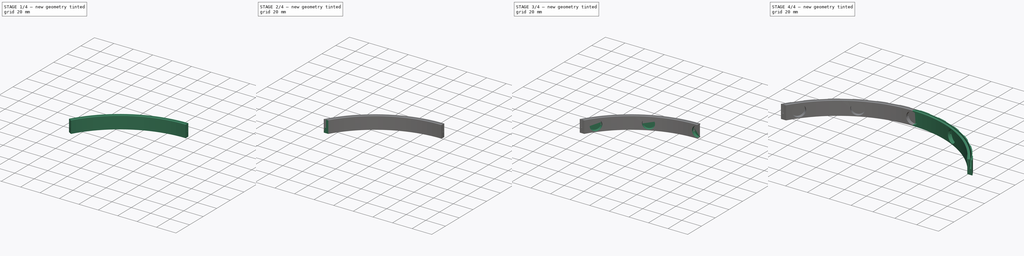
[diagram: build sequence overview — one tinted view per stage of 4, left to right]
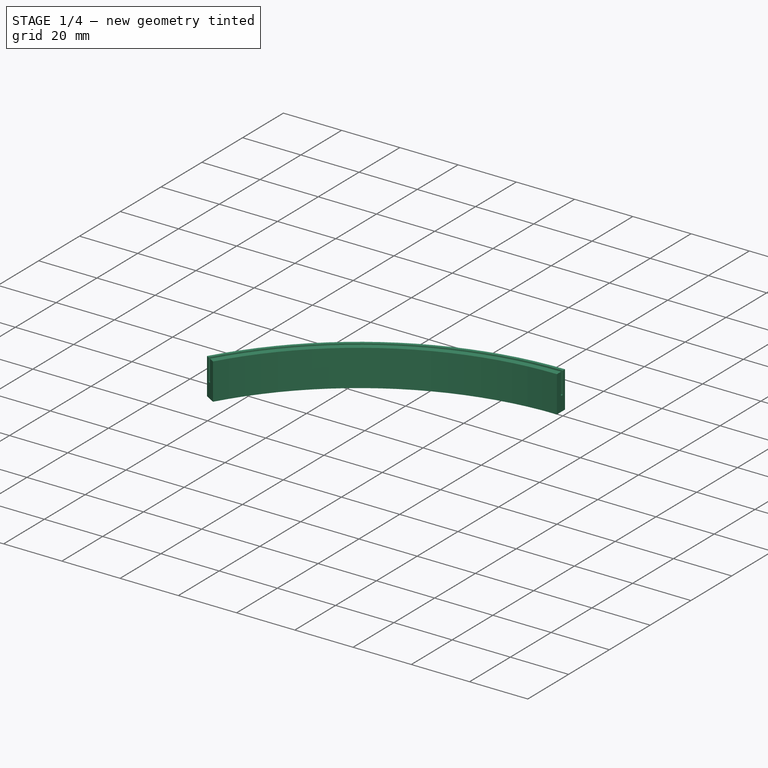
[diagram: stage 1 of 4 — iso view after this stage's code; geometry added in this stage tinted green]
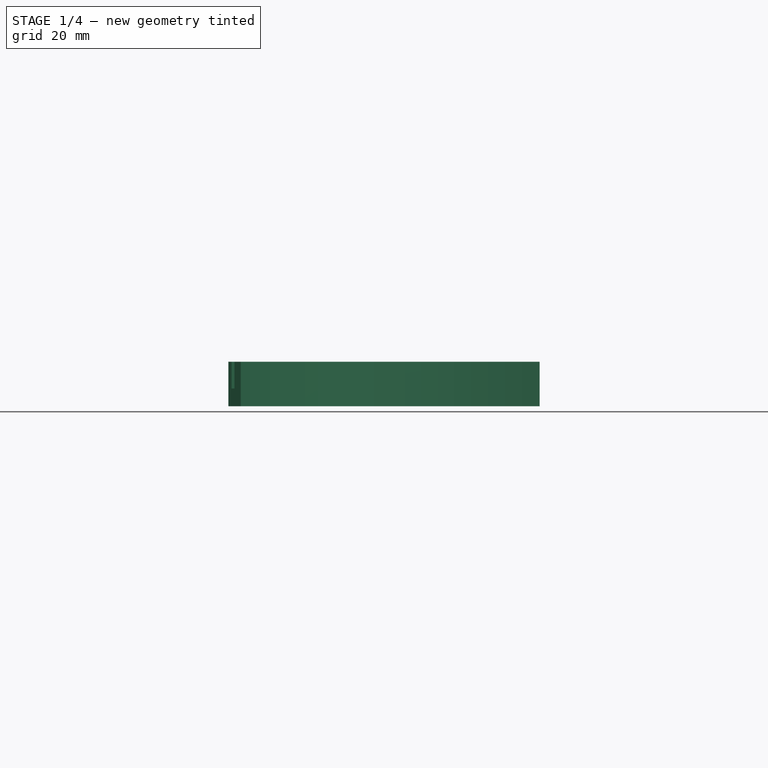
[diagram: stage 1 of 4 — front view after this stage's code; geometry added in this stage tinted green]
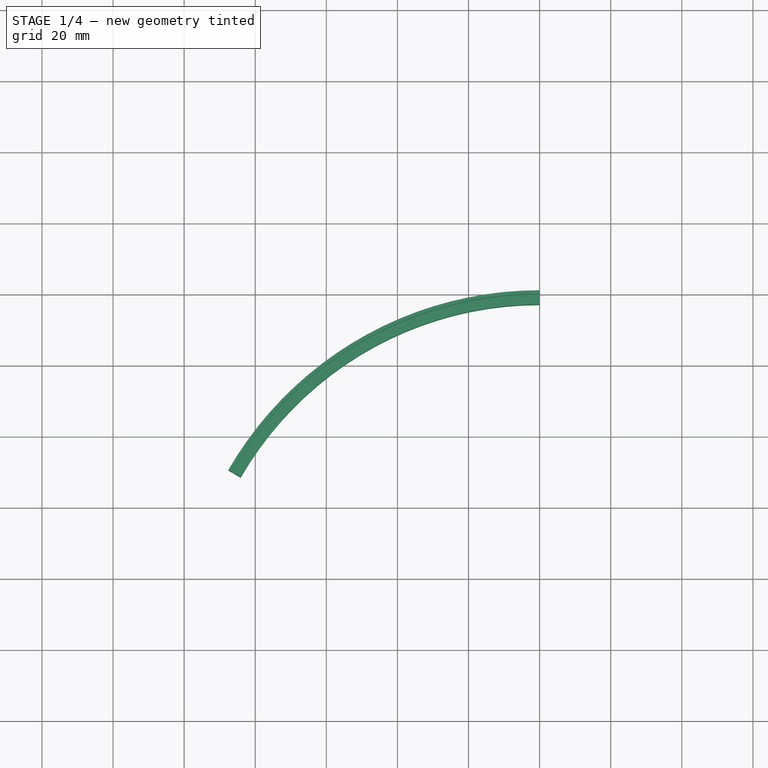
[diagram: stage 1 of 4 — top view after this stage's code; geometry added in this stage tinted green]
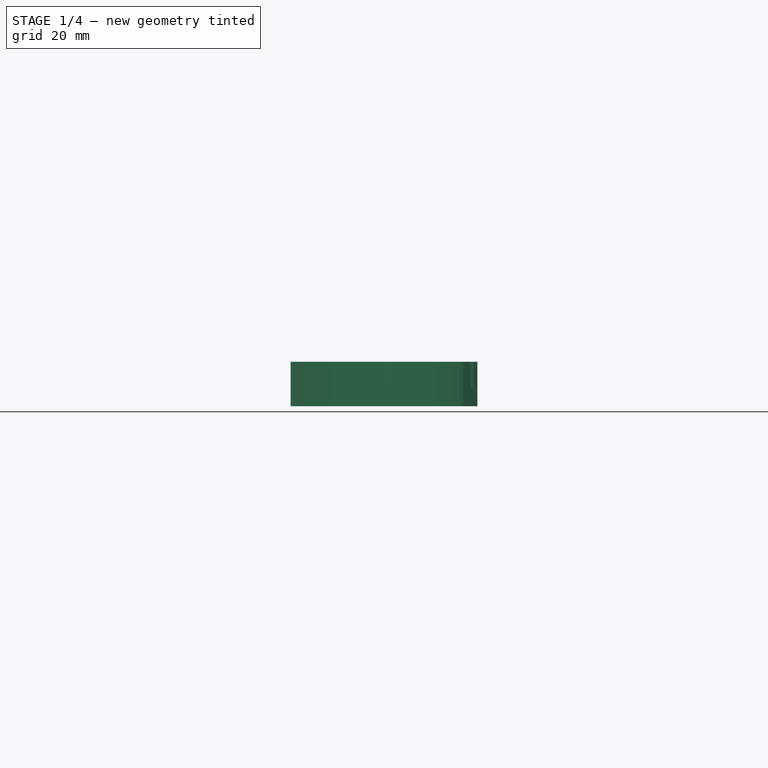
[diagram: stage 1 of 4 — right view after this stage's code; geometry added in this stage tinted green]
FCSTD DOCUMENT  (FreeCAD 1.0R39319 (Git))
Label: VisorAdapter
License: All rights reserved
LicenseURL: https://en.wikipedia.org/wiki/All_rights_reserved
objects: Sketcher::SketchObject×4, PartDesign::Pad×3, PartDesign::Pocket×3, PartDesign::PolarPattern×3, PartDesign::SubtractiveBox×2, PartDesign::Draft×1, PartDesign::Mirrored×1, PartDesign::Body×1
note: 44 computed .brp shape members not serialized (recipe doc carries the construction recipe); baked Part::Feature solids carry a one-line shape summary decoded from their .brp

FEATURE [Sketcher::SketchObject] Sketch
  ArcFitTolerance = 1e-06
  AttachmentSupport = -> [XY_Plane]
  FullyConstrained = true
  MakeInternals = false
  MapMode = 5
  sketch-geometry (10):
    g0: ArcOfCircle CenterX=0 CenterY=0 CenterZ=0 NormalX=0 NormalY=0 NormalZ=1 AngleXU=0 Radius=101.1 StartAngle=1.5708 EndAngle=2.61799
    g1: ArcOfCircle CenterX=0 CenterY=0 CenterZ=0 NormalX=0 NormalY=0 NormalZ=1 AngleXU=0 Radius=97.1 StartAngle=1.5708 EndAngle=2.61799
    g2: ArcOfCircle CenterX=0 CenterY=0 CenterZ=0 NormalX=0 NormalY=0 NormalZ=1 AngleXU=0 Radius=99.1 StartAngle=1.5708 EndAngle=2.61799
    g3: ArcOfCircle CenterX=-6.1e-15 CenterY=0 CenterZ=0 NormalX=0 NormalY=0 NormalZ=1 AngleXU=0 Radius=100.1 StartAngle=1.5708 EndAngle=2.61799
    g4: LineSegment StartX=0 StartY=99.1 StartZ=0 EndX=0 EndY=97.1 EndZ=0
    g5: LineSegment StartX=0 StartY=101.1 StartZ=0 EndX=0 EndY=100.1 EndZ=0
    g6: LineSegment StartX=0 StartY=100.1 StartZ=0 EndX=0 EndY=99.1 EndZ=0
    g7: LineSegment StartX=-87.5552 StartY=50.55 StartZ=0 EndX=-86.6891 EndY=50.05 EndZ=0
    g8: LineSegment StartX=-86.6891 StartY=50.05 StartZ=0 EndX=-85.8231 EndY=49.55 EndZ=0
    g9: LineSegment StartX=-85.8231 StartY=49.55 StartZ=0 EndX=-84.0911 EndY=48.55 EndZ=0
  constraints (29):
    c: Radius(g0) = 101.1
    c: Angle(g0) = 1.0472
    c: Coincident(g0,g-1)
    c: PointOnObject(g0,g-2)
    c: Radius(g1) = 97.1
    c: Angle(g1) = 1.0472
    c: Coincident(g1,g0)
    c: PointOnObject(g1,g-2)
    c: Radius(g2) = 99.1
    c: Angle(g2) = 1.0472
    c: Coincident(g2,g0)
    c: PointOnObject(g2,g-2)
    c: Block(g0)
    c: Block(g1)
    c: Block(g2)
    c: Block(g3)
    c: Coincident(g4,g2)
    c: Coincident(g4,g1)
    c: Coincident(g5,g0)
    c: Coincident(g5,g3)
    c: Vertical(g5)
    c: Coincident(g6,g3)
    c: Coincident(g6,g2)
    c: Coincident(g7,g0)
    c: Coincident(g7,g3)
    c: Coincident(g8,g3)
    c: Coincident(g8,g2)
    c: Coincident(g9,g2)
    c: Coincident(g9,g1)
FEATURE [PartDesign::Pad] Pad
  Direction = (0,0,1)
  Length = 12.5
  Length2 = 10
  Profile = -> Sketch [Edge4,Edge5,Edge1,Edge3]
  ReferenceAxis = -> Sketch [N_Axis]
  Refine = true
  Suppressed = false
  Type = 0
FEATURE [PartDesign::Pad] Pad001
  BaseFeature = -> Pad
  Direction = (0,0,1)
  Length = 5
  Length2 = 10
  Profile = -> Sketch [Edge1,Edge10,Edge6,Edge2]
  ReferenceAxis = -> Sketch [N_Axis]
  Refine = true
  Suppressed = false
  Type = 0
FEATURE [PartDesign::Pad] Pad002
  BaseFeature = -> Pad001
  Direction = (0,0,1)
  Length = 12.5
  Length2 = 10
  Profile = -> Sketch [Edge9,Edge10,Edge8,Edge7]
  ReferenceAxis = -> Sketch [N_Axis]
  Refine = true
  Suppressed = false
  Type = 0
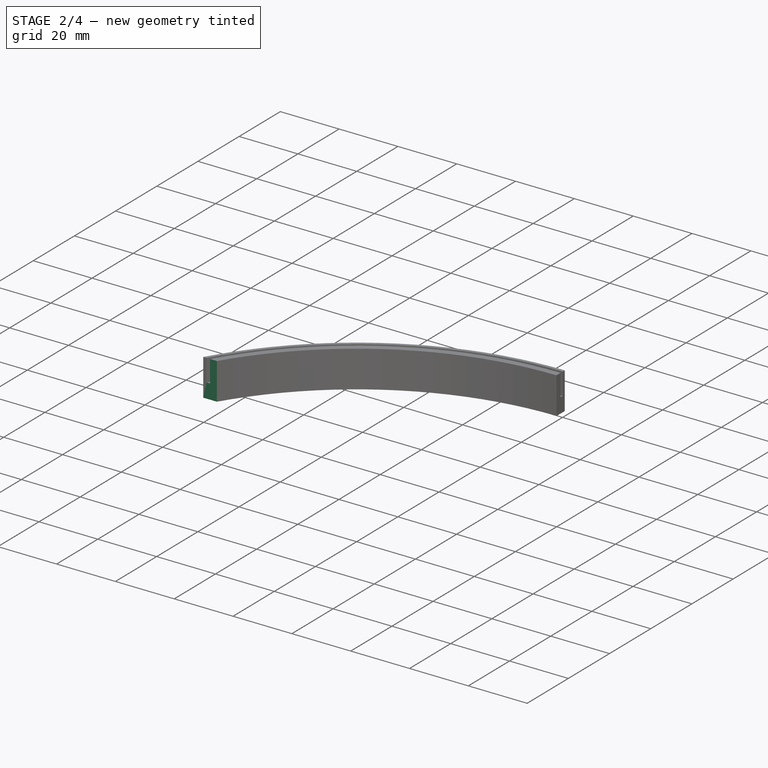
[diagram: stage 2 of 4 — iso view after this stage's code; geometry added in this stage tinted green]
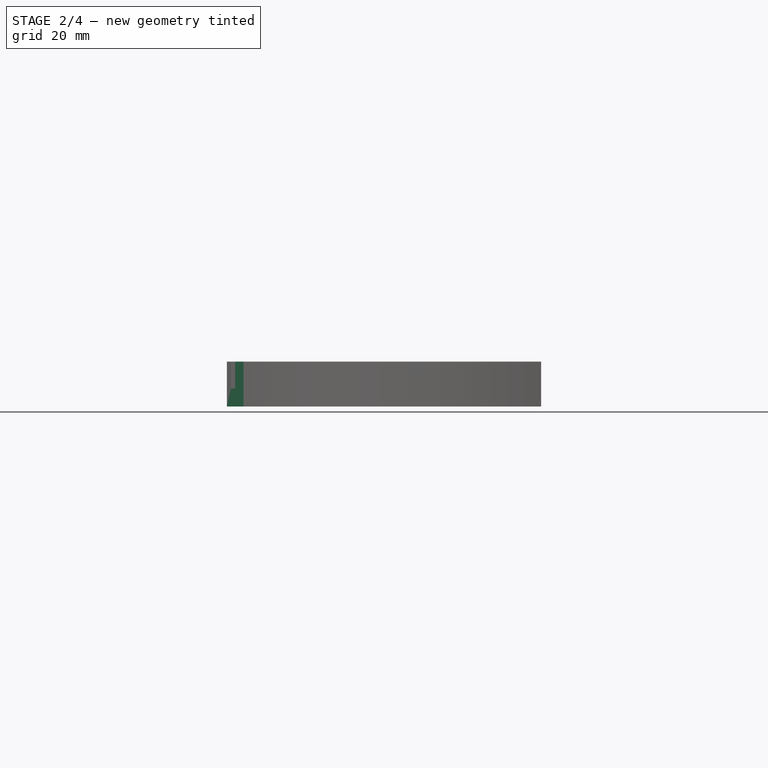
[diagram: stage 2 of 4 — front view after this stage's code; geometry added in this stage tinted green]
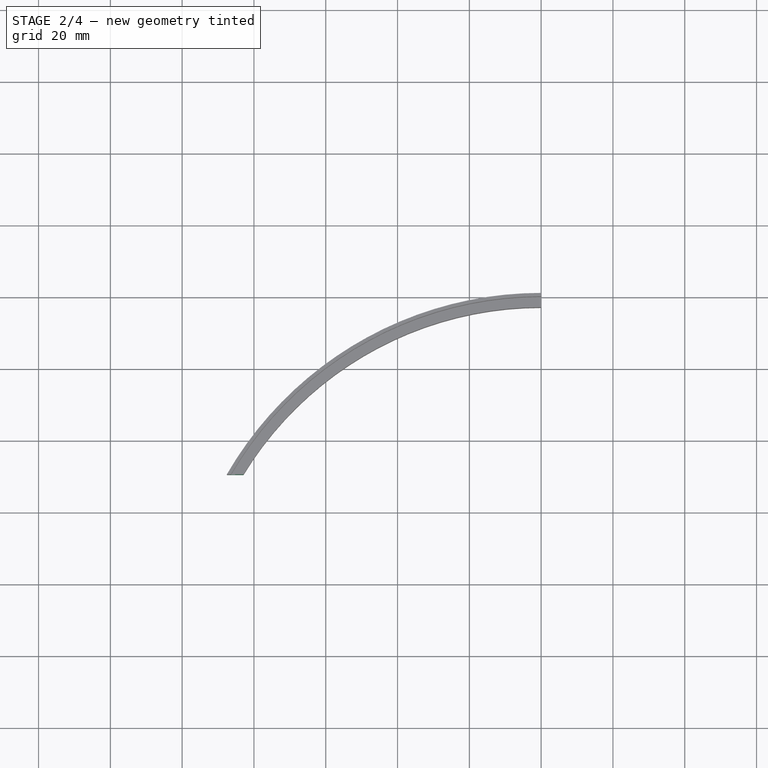
[diagram: stage 2 of 4 — top view after this stage's code; geometry added in this stage tinted green]
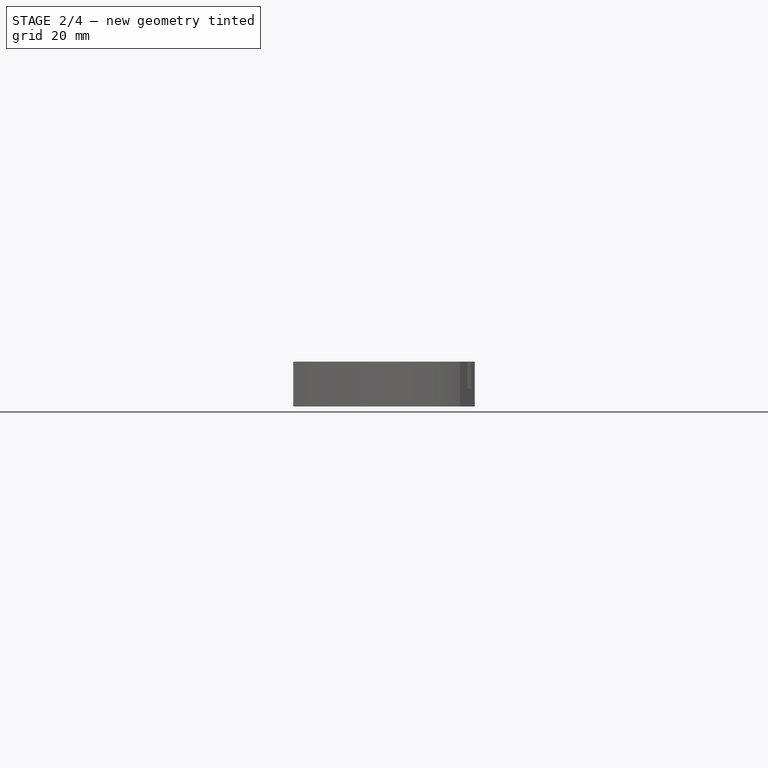
[diagram: stage 2 of 4 — right view after this stage's code; geometry added in this stage tinted green]
FEATURE [PartDesign::Draft] Draft
  Angle = 30
  Base = -> Pad002 [Face10]
  BaseFeature = -> Pad002
  Refine = true
  Reversed = true
  SupportTransform = false
  Suppressed = false
FEATURE [PartDesign::SubtractiveBox] Box
  AttacherType = Attacher::AttachEngine3D
  BaseFeature = -> Draft
  Height = 10
  Length = 10
  Refine = true
  Suppressed = false
  Width = 10
FEATURE [PartDesign::SubtractiveBox] Box001
  AttacherType = Attacher::AttachEngine3D
  AttachmentOffset = pos=(-4,-7,-9) rot=(0,0,1;0rad)
  AttachmentSupport = -> [Box]
  BaseFeature = -> Box
  Height = 10
  Length = 10
  MapMode = 45
  Placement = pos=(-88.6644,40.55,13.25) rot=(-1,0,0;1.5708rad)
  Refine = true
  Suppressed = false
  Width = 15
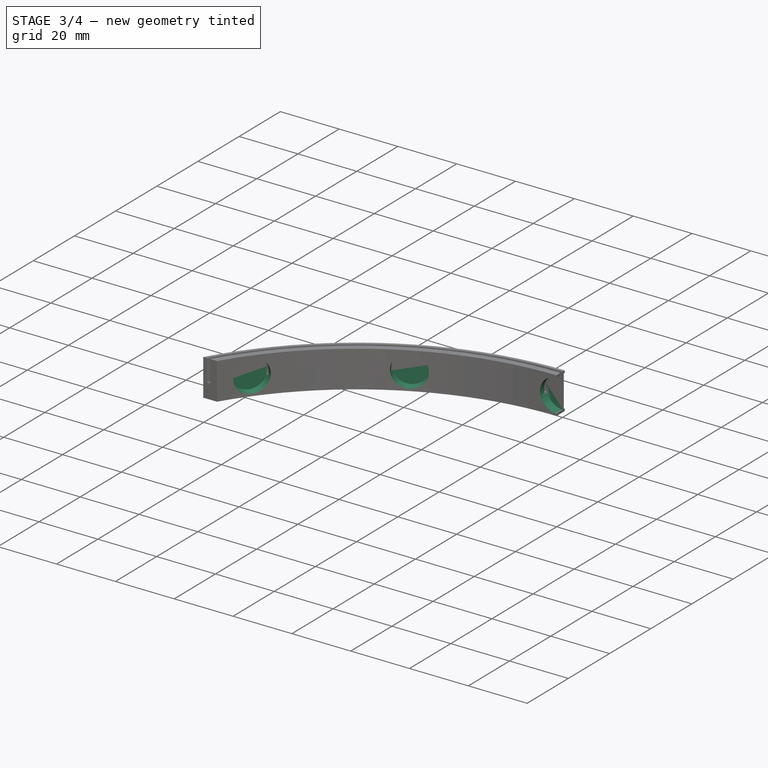
[diagram: stage 3 of 4 — iso view after this stage's code; geometry added in this stage tinted green]
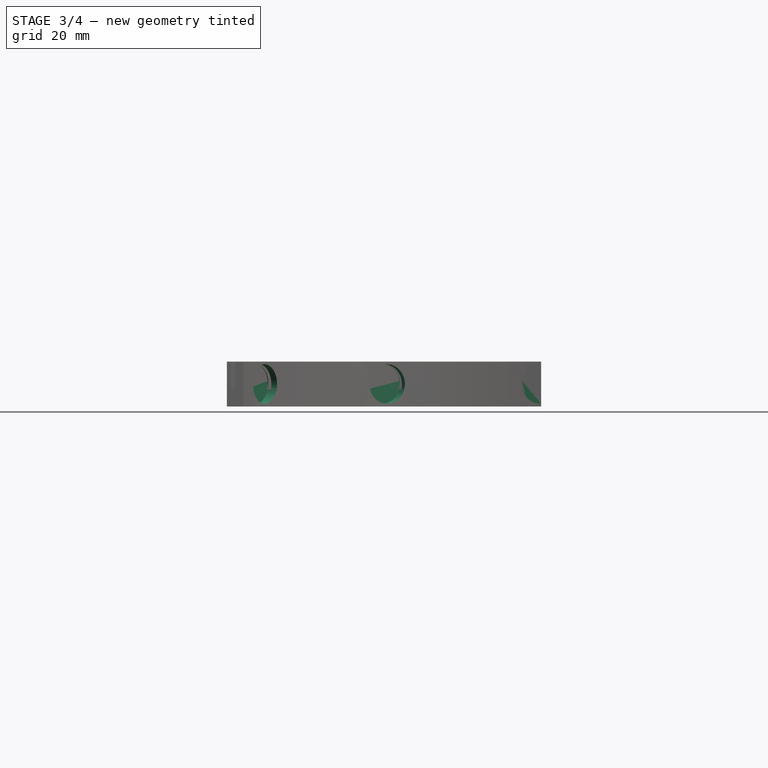
[diagram: stage 3 of 4 — front view after this stage's code; geometry added in this stage tinted green]
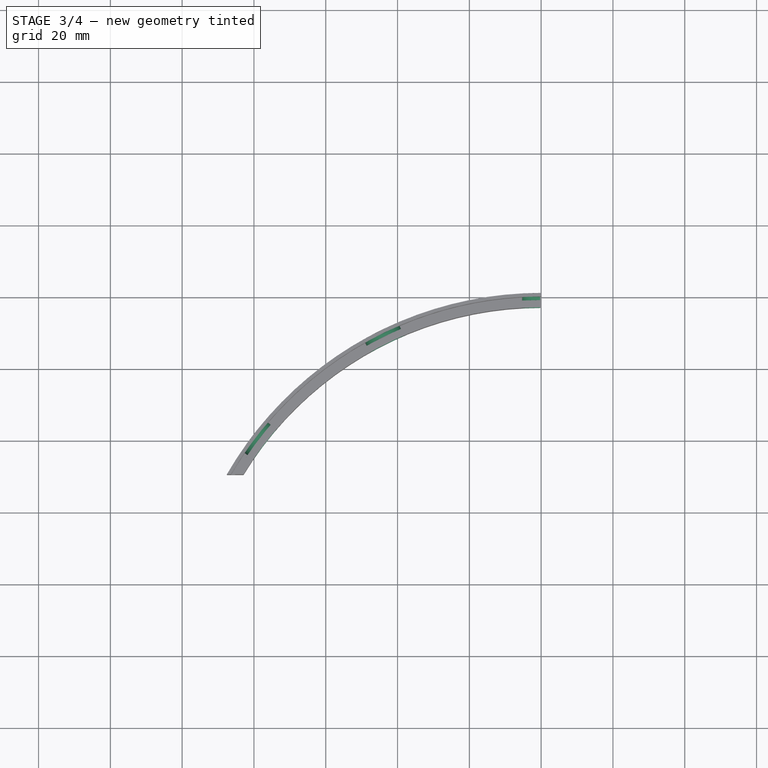
[diagram: stage 3 of 4 — top view after this stage's code; geometry added in this stage tinted green]
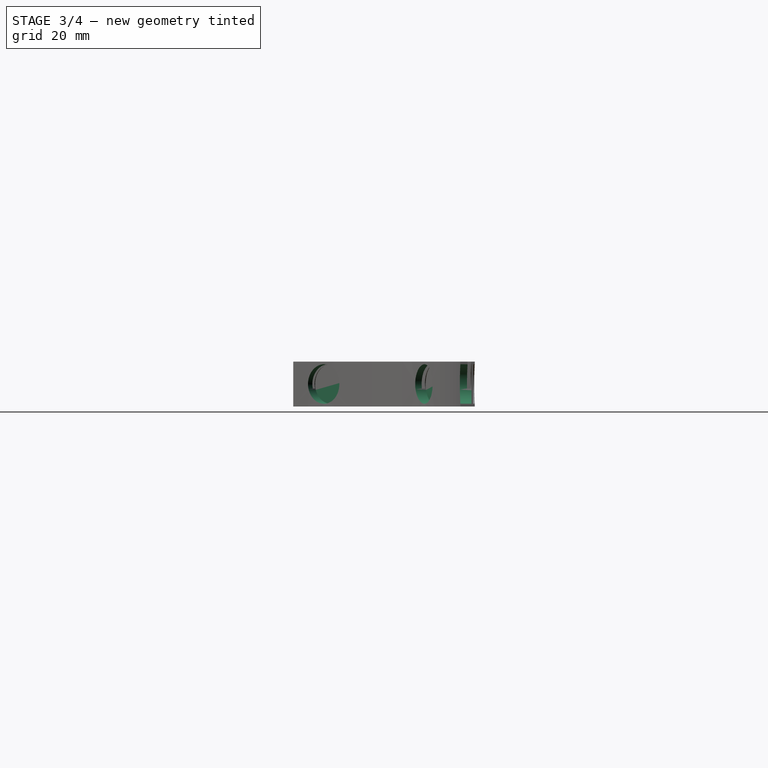
[diagram: stage 3 of 4 — right view after this stage's code; geometry added in this stage tinted green]
FEATURE [Sketcher::SketchObject] Sketch001
  ArcFitTolerance = 1e-06
  AttachmentOffset = pos=(0,0,-101.1) rot=(0,0,1;0rad)
  AttachmentSupport = -> [XZ_Plane]
  FullyConstrained = true
  MakeInternals = false
  MapMode = 5
  Placement = pos=(0,101.1,-2.24e-14) rot=(1,0,0;1.5708rad)
  sketch-geometry (1):
    g0: Circle CenterX=0 CenterY=6.25 CenterZ=0 NormalX=0 NormalY=0 NormalZ=1 AngleXU=0 Radius=5.5
  constraints (2):
    c: Diameter(g0) = 11
    c: Block(g0)
FEATURE [PartDesign::Pocket] Pocket
  BaseFeature = -> Box001
  Direction = (0,1,-2e-16)
  Length = 0.5
  Length2 = 5
  Placement = pos=(-88.6644,40.55,13.25) rot=(-1,0,0;1.5708rad)
  Profile = -> Sketch001
  ReferenceAxis = -> Sketch001 [N_Axis]
  Refine = true
  Reversed = true
  Suppressed = false
  Type = 0
FEATURE [PartDesign::PolarPattern] PolarPattern
  Angle = 52.5
  Axis = -> Z_Axis
  BaseFeature = -> Pocket
  Mode = 0
  Occurrences = 3
  Offset = 120
  Originals = -> [Pocket]
  Placement = pos=(-88.6644,40.55,13.25) rot=(-1,0,0;1.5708rad)
  Refine = true
  Suppressed = false
  TransformMode = 0
FEATURE [Sketcher::SketchObject] Sketch002
  ArcFitTolerance = 1e-06
  AttachmentOffset = pos=(0,0,-96) rot=(0,0,1;0rad)
  AttachmentSupport = -> [XZ_Plane]
  FullyConstrained = true
  MakeInternals = false
  MapMode = 5
  Placement = pos=(0,96,-2.13e-14) rot=(1,0,0;1.5708rad)
  sketch-geometry (1):
    g0: Circle CenterX=0 CenterY=6.25 CenterZ=0 NormalX=0 NormalY=0 NormalZ=1 AngleXU=0 Radius=5.5
  constraints (2):
    c: Diameter(g0) = 11
    c: Block(g0)
FEATURE [PartDesign::Pocket] Pocket001
  BaseFeature = -> PolarPattern
  Direction = (0,1,-2e-16)
  Length = 4.2
  Length2 = 5
  Placement = pos=(-88.6644,40.55,13.25) rot=(-1,0,0;1.5708rad)
  Profile = -> Sketch002 [Edge1]
  ReferenceAxis = -> Sketch002 [N_Axis]
  Refine = true
  Suppressed = false
  Type = 0
FEATURE [PartDesign::PolarPattern] PolarPattern001
  Angle = 52.5
  Axis = -> Z_Axis
  BaseFeature = -> Pocket001
  Mode = 0
  Occurrences = 3
  Offset = 120
  Originals = -> [Pocket001]
  Placement = pos=(-88.6644,40.55,13.25) rot=(-1,0,0;1.5708rad)
  Refine = true
  Suppressed = false
  TransformMode = 0
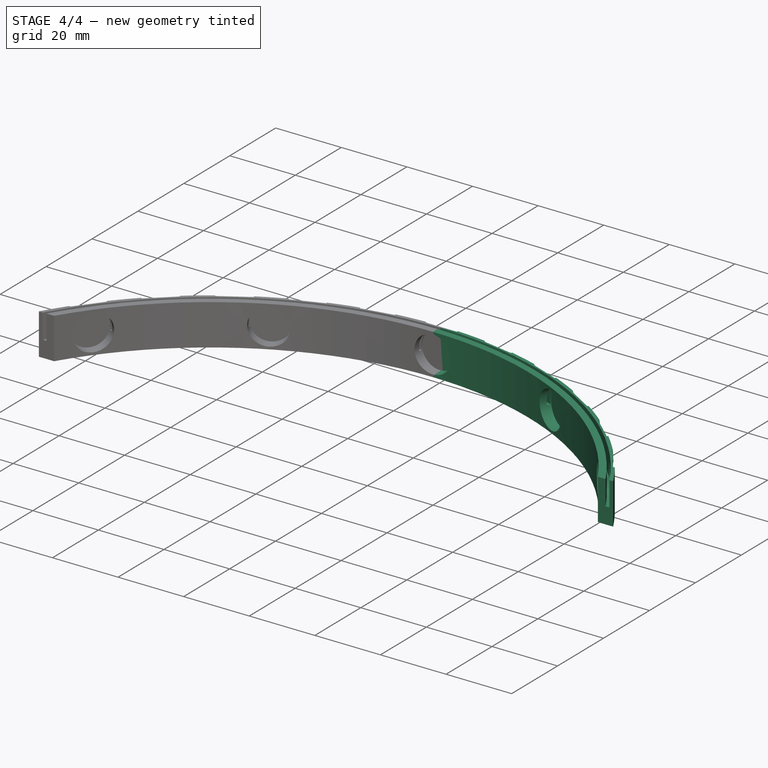
[diagram: stage 4 of 4 — iso view after this stage's code; geometry added in this stage tinted green]
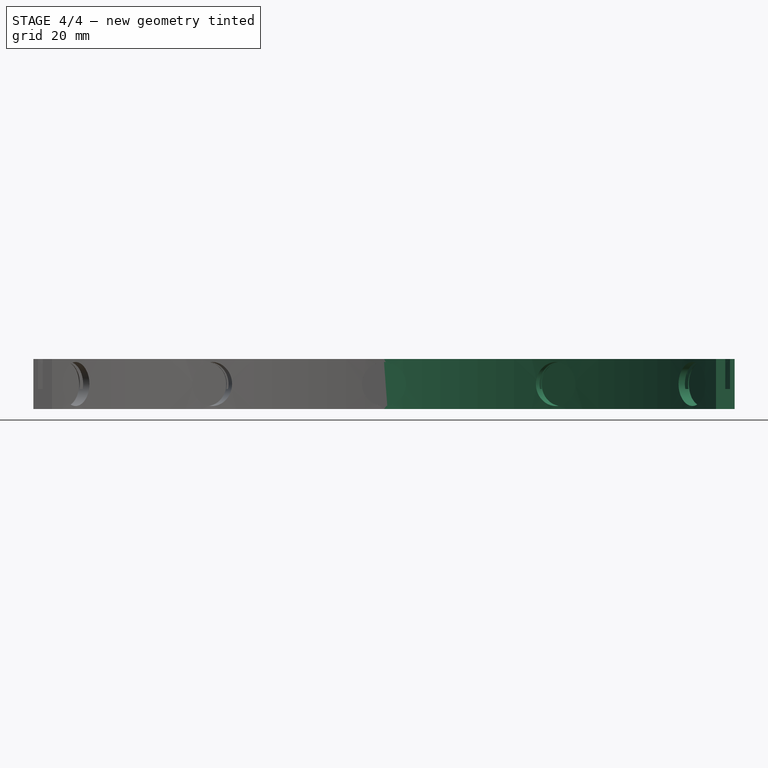
[diagram: stage 4 of 4 — front view after this stage's code; geometry added in this stage tinted green]
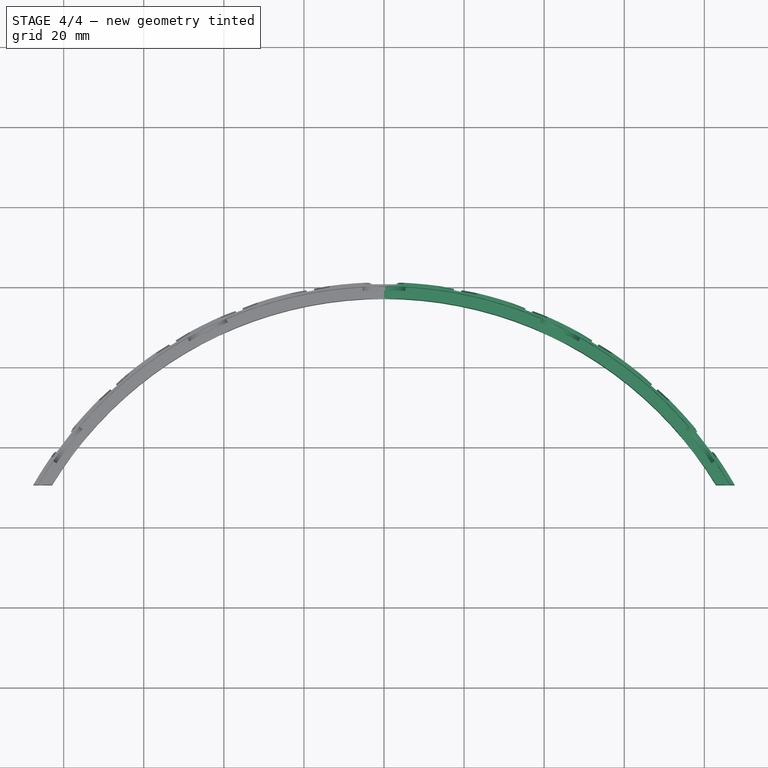
[diagram: stage 4 of 4 — top view after this stage's code; geometry added in this stage tinted green]
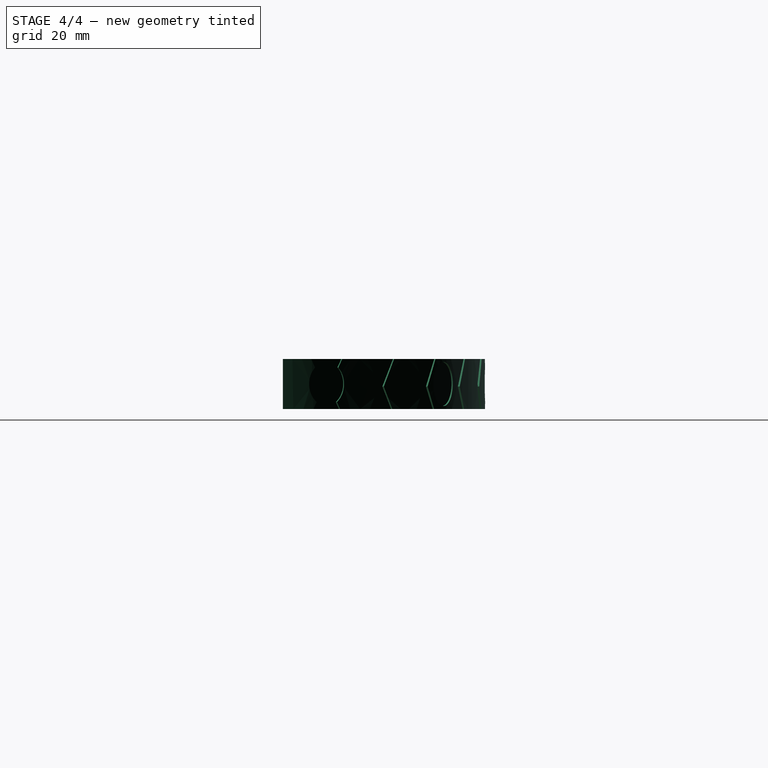
[diagram: stage 4 of 4 — right view after this stage's code; geometry added in this stage tinted green]
FEATURE [Sketcher::SketchObject] Sketch003
  ArcFitTolerance = 1e-06
  AttachmentOffset = pos=(0,0,-101.1) rot=(0,0,1;0rad)
  AttachmentSupport = -> [XZ_Plane,Y_Axis,Z_Axis]
  FullyConstrained = false
  MakeInternals = false
  MapMode = 5
  Placement = pos=(0,101.1,-2.24e-14) rot=(1,0,0;1.5708rad)
  sketch-geometry (8):
    g0: LineSegment StartX=-0.935169 StartY=5.63024 StartZ=0 EndX=-6.27868 EndY=-3.625 EndZ=0
    g1: LineSegment StartX=-6.27868 StartY=-3.625 StartZ=0 EndX=6.27868 EndY=-3.625 EndZ=0
    g2: LineSegment StartX=6.27868 StartY=-3.625 StartZ=0 EndX=0.935169 EndY=5.63024 EndZ=0
    g3: Circle [constr] CenterX=0 CenterY=0 CenterZ=0 NormalX=0 NormalY=0 NormalZ=1 AngleXU=0 Radius=7.25
    g4: LineSegment StartX=0.935169 StartY=5.63024 StartZ=0 EndX=7.36122 EndY=16.7605 EndZ=0
    g5: LineSegment StartX=7.36122 StartY=16.7605 StartZ=0 EndX=-7.36122 EndY=16.7605 EndZ=0
    g6: LineSegment StartX=-7.36122 StartY=16.7605 StartZ=0 EndX=-0.935169 EndY=5.63024 EndZ=0
    g7: Circle [constr] CenterX=0 CenterY=12.5105 CenterZ=0 NormalX=0 NormalY=0 NormalZ=1 AngleXU=0 Radius=8.5
  constraints (14):
    c: Coincident(g0,g1)
    c: Coincident(g1,g2)
    c: PointOnObject(g0,g3)
    c: PointOnObject(g1,g3)
    c: Radius(g3) = 7.25
    c: Coincident(g3,g-1)
    c: Coincident(g4,g5)
    c: Coincident(g5,g6)
    c: PointOnObject(g4,g7)
    c: PointOnObject(g5,g7)
    c: Radius(g7) = 8.5
    c: PointOnObject(g7,g-2)
    c: Coincident(g0,g6)
    c: Coincident(g2,g4)
FEATURE [PartDesign::Pocket] Pocket002
  BaseFeature = -> PolarPattern001
  Direction = (0,1,-2e-16)
  Length = 0.5
  Length2 = 5
  Placement = pos=(-88.6644,40.55,13.25) rot=(-1,0,0;1.5708rad)
  Profile = -> Sketch003
  ReferenceAxis = -> Sketch003 [N_Axis]
  Refine = true
  Reversed = true
  Suppressed = false
  Type = 0
FEATURE [PartDesign::PolarPattern] PolarPattern002
  Angle = 52.5
  Axis = -> Z_Axis
  BaseFeature = -> Pocket002
  Mode = 0
  Occurrences = 6
  Offset = 120
  Originals = -> [Pocket002]
  Placement = pos=(-88.6644,40.55,13.25) rot=(-1,0,0;1.5708rad)
  Refine = true
  Suppressed = false
  TransformMode = 0
FEATURE [PartDesign::Mirrored] Mirrored
  BaseFeature = -> PolarPattern002
  MirrorPlane = -> YZ_Plane
  Originals = -> [PolarPattern002]
  Placement = pos=(-88.6644,40.55,13.25) rot=(-1,0,0;1.5708rad)
  Refine = true
  Suppressed = false
  TransformMode = 1
FEATURE [PartDesign::Body] Body
  AllowCompound = false
  Group = -> [Sketch,Pad,Pad001,Pad002,Draft,Box,Box001,Sketch001,Pocket,PolarPattern,Sketch002,Pocket001,PolarPattern001,Sketch003,Pocket002,PolarPattern002,Mirrored]
  Origin = -> Origin
  Tip = -> Mirrored
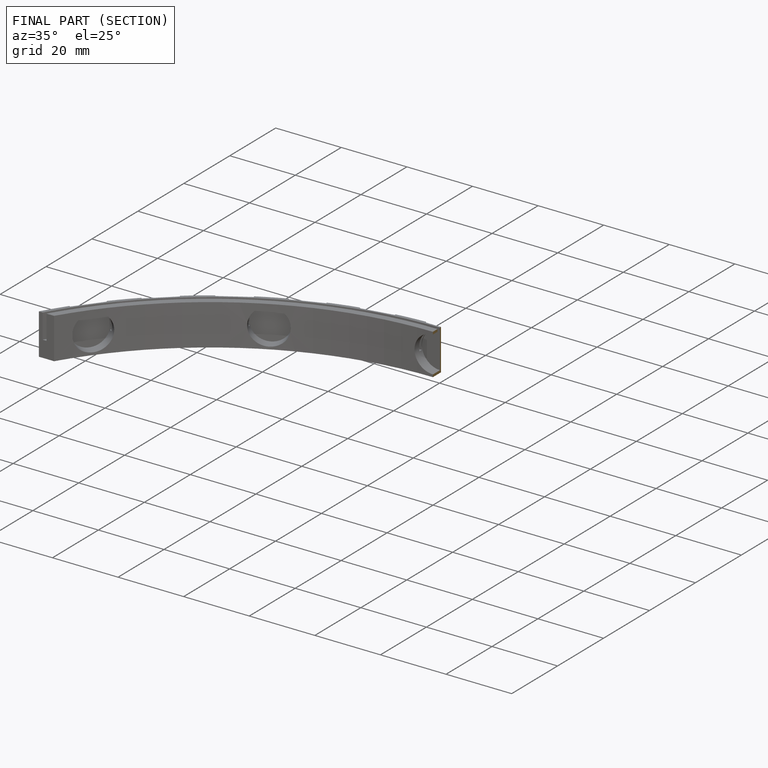
[diagram: finished part — half-section view (interior)]
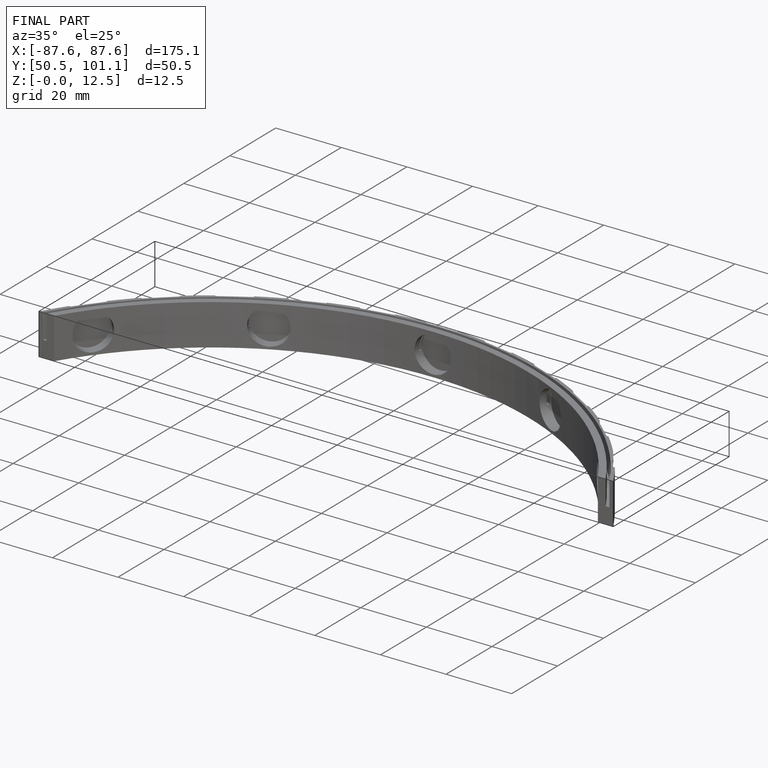
[diagram: finished part — iso view with bounding-box wireframe]
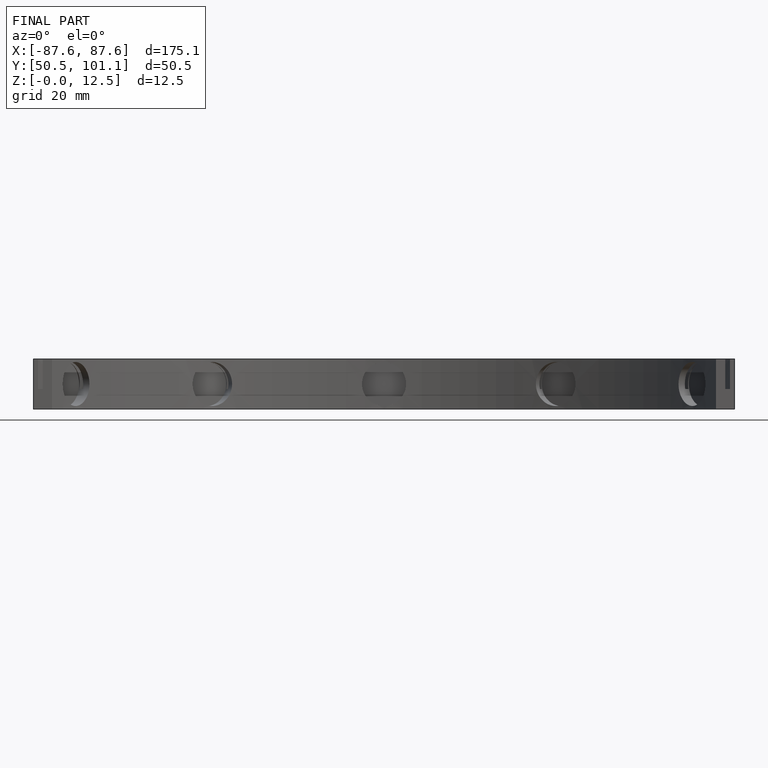
[diagram: finished part — front view with bounding-box wireframe]
